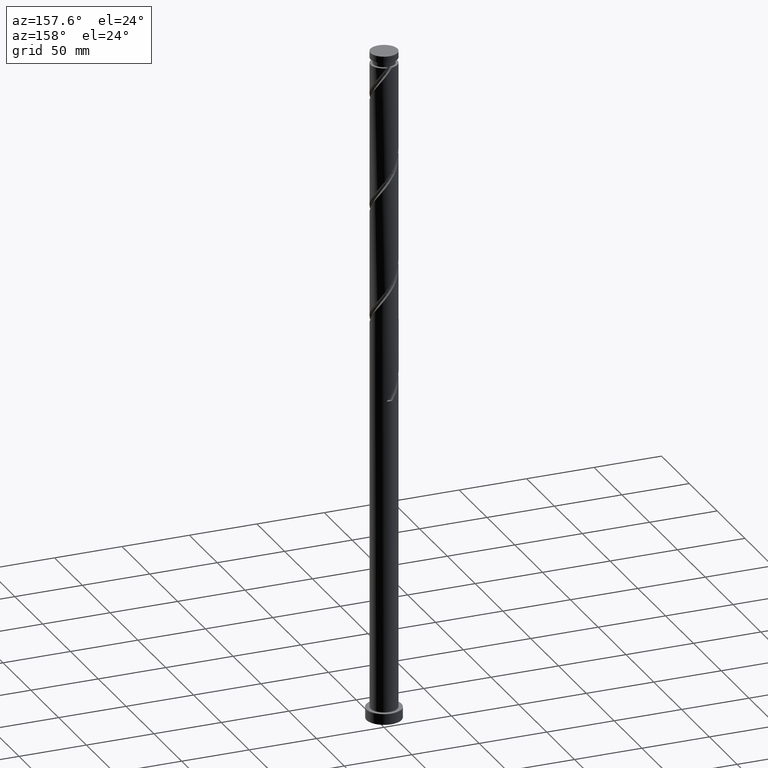
[diagram: clean part render]
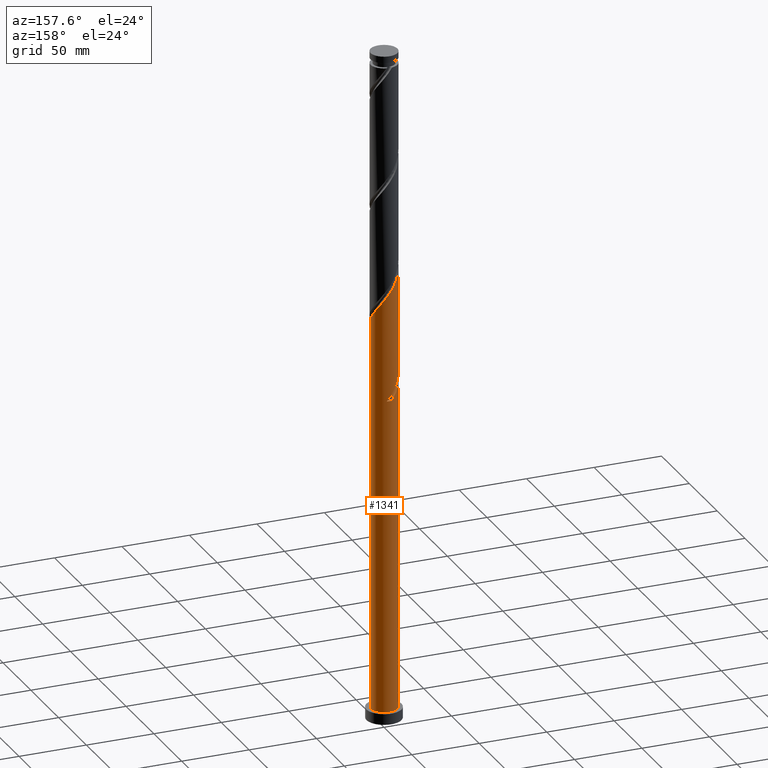
[diagram: same view with one face highlighted and labeled with its STEP entity id]
A machine part, auxiliary view. The second image highlights one B-rep face of the part: STEP entity #1341.
In plain terms, the highlighted cylindrical surface (edge-blend (fillet) strip) has radius 10 mm, axis along (-0, -0, -1).
Its self-contained STEP definition (entity closure, byte-faithful):
#12 = CARTESIAN_POINT ( 'NONE',  ( -9.815549833794840140, 1.911800580680543371, 256.8098413428221534 ) ) ;
#15 = CARTESIAN_POINT ( 'NONE',  ( 9.999920586965943770, 0.03985290924256063017, 301.0806746761556383 ) ) ;
#23 = CARTESIAN_POINT ( 'NONE',  ( 0.000000000000000000, 0.000000000000000000, 500.0000000000000000 ) ) ;
#24 = LINE ( 'NONE', #693, #1190 ) ;
#26 = CARTESIAN_POINT ( 'NONE',  ( -0.03985290924256019995, 9.999920586965943770, 321.9140080094888958 ) ) ;
#51 = CARTESIAN_POINT ( 'NONE',  ( 9.604004581993264011, 2.955190627113456703, 304.9869246761555814 ) ) ;
#61 = CARTESIAN_POINT ( 'NONE',  ( 8.292489003426409155, 5.588794693675231073, 308.8931746761555246 ) ) ;
#95 = CARTESIAN_POINT ( 'NONE',  ( -10.00000000000001421, 1.093322644084541298E-14, 342.6946443648252512 ) ) ;
#100 = CARTESIAN_POINT ( 'NONE',  ( -8.336771183575214295, 5.522521727681143133, 334.9348413428220965 ) ) ;
#119 = EDGE_CURVE ( 'NONE', #935, #1452, #866, .T. ) ;
#167 = CARTESIAN_POINT ( 'NONE',  ( -9.253973005134763952, 3.789984646438214089, 254.2056746761555814 ) ) ;
#183 = CARTESIAN_POINT ( 'NONE',  ( 3.789984646438214089, 9.253973005134763952, 316.7056746761555814 ) ) ;
#190 = DIRECTION ( 'NONE',  ( -1.000000000000000000, 0.000000000000000000, 0.000000000000000000 ) ) ;
#195 = CARTESIAN_POINT ( 'NONE',  ( -10.00000000000000178, 0.000000000000000000, 500.0000000000000000 ) ) ;
#211 = CARTESIAN_POINT ( 'NONE',  ( -7.792850268545467252, 6.343622021019032609, 250.2994246761555814 ) ) ;
#242 = CARTESIAN_POINT ( 'NONE',  ( -9.815549833794840140, 1.911800580680543371, 340.1431746761554678 ) ) ;
#264 = CARTESIAN_POINT ( 'NONE',  ( -9.999999999999996447, -7.861634696127906080E-15, 264.6750383208190556 ) ) ;
#305 = DIRECTION ( 'NONE',  ( -1.000000000000000000, 0.000000000000000000, 0.000000000000000000 ) ) ;
#323 = ORIENTED_EDGE ( 'NONE', *, *, #488, .F. ) ;
#330 = CARTESIAN_POINT ( 'NONE',  ( 10.00000000000000178, 1.224646799147353454E-15, 8.000000000000000000 ) ) ;
#334 = CARTESIAN_POINT ( 'NONE',  ( -10.00000000000000178, 0.000000000000000000, 8.000000000000000000 ) ) ;
#360 = CARTESIAN_POINT ( 'NONE',  ( -2.955190627113461588, 9.604004581993260459, 325.8202580094888958 ) ) ;
#366 = CARTESIAN_POINT ( 'NONE',  ( -5.588794693675229297, 8.292489003426412708, 246.3931746761555246 ) ) ;
#447 = CARTESIAN_POINT ( 'NONE',  ( -5.522521727681131587, 8.336771183575200084, 251.6015080094888390 ) ) ;
#459 = ORIENTED_EDGE ( 'NONE', *, *, #1081, .T. ) ;
#469 = CARTESIAN_POINT ( 'NONE',  ( -9.604004581993240919, 2.955190627113458923, 260.7160913428221534 ) ) ;
#487 = CARTESIAN_POINT ( 'NONE',  ( -10.00000000000001421, 0.9647981492898406453, 258.0853309260759829 ) ) ;
#488 = EDGE_CURVE ( 'NONE', #1774, #1878, #24, .T. ) ;
#492 = CARTESIAN_POINT ( 'NONE',  ( 8.842937235881560554, 4.772055814403907803, 307.5910913428222671 ) ) ;
#514 = CARTESIAN_POINT ( 'NONE',  ( 7.742040770971267527, 6.405533572946549903, 310.1952580094888390 ) ) ;
#519 = ORIENTED_EDGE ( 'NONE', *, *, #557, .F. ) ;
#522 = DIRECTION ( 'NONE',  ( -0.000000000000000000, -0.000000000000000000, -1.000000000000000000 ) ) ;
#532 = CYLINDRICAL_SURFACE ( 'NONE', #1867, 10.00000000000000178 ) ;
#547 = CARTESIAN_POINT ( 'NONE',  ( -8.880692098604958673, 4.701421434343251882, 336.2369246761556951 ) ) ;
#557 = EDGE_CURVE ( 'NONE', #1878, #1426, #665, .T. ) ;
#558 = CARTESIAN_POINT ( 'NONE',  ( -10.00000000000001421, 1.093322644084541298E-14, 342.6946443648252512 ) ) ;
#601 = CARTESIAN_POINT ( 'NONE',  ( -9.999999999999996447, 0.01992653374260485236, 264.6486847663018125 ) ) ;
#609 = ORIENTED_EDGE ( 'NONE', *, *, #831, .F. ) ;
#660 = CARTESIAN_POINT ( 'NONE',  ( 9.800000000000013145, 1.989974874213247702, 303.6848413428222102 ) ) ;
#665 =( BOUNDED_CURVE ( )  B_SPLINE_CURVE ( 2, ( #1262, #601, #945, #1285, #1246, #469, #803, #1455, #1085, #1733, #774, #2072, #447, #696, #835, #1640, #1141, #1804, #1677, #993, #982 ),
 .UNSPECIFIED., .F., .T. ) 
 B_SPLINE_CURVE_WITH_KNOTS ( ( 3, 2, 2, 2, 2, 2, 2, 2, 2, 2, 3 ),
 ( 0.9295286902180871502, 0.9296875000000000000, 0.9375000000000000000, 0.9453125000000000000, 0.9531250000000000000, 0.9609375000000000000, 0.9687500000000000000, 0.9765625000000000000, 0.9843750000000000000, 0.9921875000000000000, 1.000000000000000000 ),
 .UNSPECIFIED. ) 
 CURVE ( )  GEOMETRIC_REPRESENTATION_ITEM ( )  RATIONAL_B_SPLINE_CURVE ( ( 0.9089165573359302419, 0.9090019243628350010, 0.9090909090909268242, 0.9047133878838330423, 0.9090909090909268242, 0.9047133878838330423, 0.9090909090909268242, 0.9047133878838330423, 0.9090909090909268242, 0.9047133878838330423, 0.9090909090909268242, 0.9047133878838330423, 0.9090909090909268242, 0.9047133878838330423, 0.9090909090909268242, 0.9047133878838330423, 0.9090909090909268242, 0.9047133878838330423, 0.9090909090909268242, 0.9047133878838330423, 0.9090909090909268242 ) ) 
 REPRESENTATION_ITEM ( '' )  );
#693 = CARTESIAN_POINT ( 'NONE',  ( -10.00000000000000178, 0.000000000000000000, 500.0000000000000000 ) ) ;
#696 = CARTESIAN_POINT ( 'NONE',  ( -4.701421434343242112, 8.880692098604946239, 250.2994246761555246 ) ) ;
#704 = CARTESIAN_POINT ( 'NONE',  ( -7.099191920746007689, 7.042831395995149180, 248.9973413428221818 ) ) ;
#708 = CARTESIAN_POINT ( 'NONE',  ( 6.343622021019031720, 7.792850268545469028, 312.7994246761555246 ) ) ;
#714 = CARTESIAN_POINT ( 'NONE',  ( -5.588794693675229297, 8.292489003426412708, 329.7265080094888958 ) ) ;
#774 = CARTESIAN_POINT ( 'NONE',  ( -7.042831395995134969, 7.099191920745997919, 254.2056746761555246 ) ) ;
#803 = CARTESIAN_POINT ( 'NONE',  ( -9.223470908937390078, 3.863623220758681587, 259.4140080094888390 ) ) ;
#807 = ORIENTED_EDGE ( 'NONE', *, *, #1429, .F. ) ;
#812 = CARTESIAN_POINT ( 'NONE',  ( -9.627253911664572783, 2.878547858533178072, 255.5077580094889527 ) ) ;
#817 = CIRCLE ( 'NONE', #2041, 10.00000000000000178 ) ;
#831 = EDGE_CURVE ( 'NONE', #1481, #1774, #1899, .T. ) ;
#835 = CARTESIAN_POINT ( 'NONE',  ( -3.789984646438206539, 9.253973005134753294, 248.9973413428221534 ) ) ;
#851 = ORIENTED_EDGE ( 'NONE', *, *, #1805, .T. ) ;
#857 = CARTESIAN_POINT ( 'NONE',  ( 10.00000000000001776, 0.01992653374258430976, 301.0543312526759223 ) ) ;
#866 = LINE ( 'NONE', #195, #1044 ) ;
#891 = CARTESIAN_POINT ( 'NONE',  ( -6.405533572946549903, 7.742040770971267527, 331.0285913428221534 ) ) ;
#935 = VERTEX_POINT ( 'NONE', #1030 ) ;
#945 = CARTESIAN_POINT ( 'NONE',  ( -9.999920586965922453, 0.03985290924256724987, 264.6223413428222102 ) ) ;
#957 = VERTEX_POINT ( 'NONE', #1686 ) ;
#967 = CARTESIAN_POINT ( 'NONE',  ( -3.863623220758684251, 9.223470908937407842, 243.7890080094888674 ) ) ;
#976 = DIRECTION ( 'NONE',  ( 0.000000000000000000, -0.000000000000000000, -1.000000000000000000 ) ) ;
#982 = CARTESIAN_POINT ( 'NONE',  ( 1.989974874213250366, 9.800000000000002487, 241.1848413428221534 ) ) ;
#993 = CARTESIAN_POINT ( 'NONE',  ( 1.024759121313038035, 9.995995418006760502, 242.4869246761555246 ) ) ;
#1014 = CIRCLE ( 'NONE', #1598, 10.00000000000000178 ) ;
#1030 = CARTESIAN_POINT ( 'NONE',  ( -10.00000000000001421, 1.093322644084541298E-14, 259.3613110314919368 ) ) ;
#1044 = VECTOR ( 'NONE', #1653, 1000.000000000000000 ) ;
#1058 = CARTESIAN_POINT ( 'NONE',  ( -9.253973005134763952, 3.789984646438214089, 337.5390080094888958 ) ) ;
#1081 = EDGE_CURVE ( 'NONE', #1481, #2065, #1122, .T. ) ;
#1085 = CARTESIAN_POINT ( 'NONE',  ( -8.292489003426396721, 5.588794693675221303, 256.8098413428222102 ) ) ;
#1111 = ORIENTED_EDGE ( 'NONE', *, *, #2063, .T. ) ;
#1122 = LINE ( 'NONE', #1568, #1291 ) ;
#1141 = CARTESIAN_POINT ( 'NONE',  ( -1.911800580680538042, 9.815549833794827705, 246.3931746761555246 ) ) ;
#1146 = CARTESIAN_POINT ( 'NONE',  ( -8.336771183575214295, 5.522521727681143133, 251.6015080094888390 ) ) ;
#1149 = CARTESIAN_POINT ( 'NONE',  ( 1.911800580680548922, 9.815549833794836587, 319.3098413428222102 ) ) ;
#1158 = FACE_OUTER_BOUND ( 'NONE', #1472, .T. ) ;
#1164 = CARTESIAN_POINT ( 'NONE',  ( 2.878547858533179848, 9.627253911664571007, 318.0077580094888958 ) ) ;
#1190 = VECTOR ( 'NONE', #522, 1000.000000000000000 ) ;
#1218 = CARTESIAN_POINT ( 'NONE',  ( -7.792850268545467252, 6.343622021019032609, 333.6327580094888958 ) ) ;
#1246 = CARTESIAN_POINT ( 'NONE',  ( -9.800000000000002487, 1.989974874213248590, 262.0181746761555814 ) ) ;
#1262 = CARTESIAN_POINT ( 'NONE',  ( -9.999999999999996447, -7.861634696127907657E-15, 264.6750383208190556 ) ) ;
#1285 = CARTESIAN_POINT ( 'NONE',  ( -9.995995418006760502, 1.024759121313037813, 263.3202580094888958 ) ) ;
#1291 = VECTOR ( 'NONE', #1942, 1000.000000000000000 ) ;
#1310 = CARTESIAN_POINT ( 'NONE',  ( 1.989974874213250589, 9.800000000000002487, 241.1848413428221534 ) ) ;
#1315 = CARTESIAN_POINT ( 'NONE',  ( 5.522521727681144021, 8.336771183575212518, 314.1015080094888958 ) ) ;
#1338 = CARTESIAN_POINT ( 'NONE',  ( 7.042831395995150956, 7.099191920746005025, 311.4973413428220965 ) ) ;
#1341 = ADVANCED_FACE ( 'NONE', ( #1158 ), #532, .T. ) ;
#1399 = CARTESIAN_POINT ( 'NONE',  ( -3.863623220758684251, 9.223470908937407842, 327.1223413428220965 ) ) ;
#1426 = VERTEX_POINT ( 'NONE', #1310 ) ;
#1429 = EDGE_CURVE ( 'NONE', #957, #935, #1545, .T. ) ;
#1452 = VERTEX_POINT ( 'NONE', #334 ) ;
#1455 = CARTESIAN_POINT ( 'NONE',  ( -8.842937235881546343, 4.772055814403903362, 258.1119246761555814 ) ) ;
#1472 = EDGE_LOOP ( 'NONE', ( #609, #459, #851, #2100, #807, #1111, #519, #323 ) ) ;
#1478 = CARTESIAN_POINT ( 'NONE',  ( 0.9450533028279091141, 10.00384575592510927, 320.6119246761556951 ) ) ;
#1481 = VERTEX_POINT ( 'NONE', #1852 ) ;
#1499 = CARTESIAN_POINT ( 'NONE',  ( 9.995995418006774713, 1.024759121313039811, 302.3827580094888958 ) ) ;
#1545 =( BOUNDED_CURVE ( )  B_SPLINE_CURVE ( 2, ( #1636, #1822, #967, #1965, #366, #1665, #704, #211, #1146, #1624, #167, #812, #12, #487, #1784 ),
 .UNSPECIFIED., .F., .T. ) 
 B_SPLINE_CURVE_WITH_KNOTS ( ( 3, 2, 2, 2, 2, 2, 2, 3 ),
 ( 0.000000000000000000, 0.007812500000000000000, 0.01562500000000000000, 0.02343750000000000000, 0.03125000000000000000, 0.03906250000000000694, 0.04687500000000000000, 0.05452869021808701144 ),
 .UNSPECIFIED. ) 
 CURVE ( )  GEOMETRIC_REPRESENTATION_ITEM ( )  RATIONAL_B_SPLINE_CURVE ( ( 0.9090909090909334855, 0.9047133878838395926, 0.9090909090909334855, 0.9047133878838395926, 0.9090909090909334855, 0.9047133878838395926, 0.9090909090909334855, 0.9047133878838395926, 0.9090909090909334855, 0.9047133878838395926, 0.9090909090909334855, 0.9047133878838395926, 0.9090909090909334855, 0.9048023726119315269, 0.9089165573359366812 ) ) 
 REPRESENTATION_ITEM ( '' )  );
#1546 = CARTESIAN_POINT ( 'NONE',  ( -7.099191920746007689, 7.042831395995149180, 332.3306746761555814 ) ) ;
#1568 = CARTESIAN_POINT ( 'NONE',  ( 10.00000000000000178, 1.224646799147353454E-15, 500.0000000000000000 ) ) ;
#1598 = AXIS2_PLACEMENT_3D ( 'NONE', #1992, #1716, #1726 ) ;
#1624 = CARTESIAN_POINT ( 'NONE',  ( -8.880692098604958673, 4.701421434343251882, 252.9035913428222102 ) ) ;
#1636 = CARTESIAN_POINT ( 'NONE',  ( -1.989974874213246370, 9.800000000000013145, 241.1848413428221534 ) ) ;
#1640 = CARTESIAN_POINT ( 'NONE',  ( -2.878547858533169634, 9.627253911664558572, 247.6952580094888674 ) ) ;
#1653 = DIRECTION ( 'NONE',  ( -0.000000000000000000, -0.000000000000000000, -1.000000000000000000 ) ) ;
#1665 = CARTESIAN_POINT ( 'NONE',  ( -6.405533572946549903, 7.742040770971267527, 247.6952580094888674 ) ) ;
#1677 = CARTESIAN_POINT ( 'NONE',  ( 0.03985290924256662537, 9.999920586965922453, 243.7890080094888674 ) ) ;
#1686 = CARTESIAN_POINT ( 'NONE',  ( -1.989974874213246370, 9.800000000000013145, 241.1848413428221534 ) ) ;
#1716 = DIRECTION ( 'NONE',  ( 0.000000000000000000, 0.000000000000000000, 1.000000000000000000 ) ) ;
#1726 = DIRECTION ( 'NONE',  ( 1.000000000000000000, 0.000000000000000000, 0.000000000000000000 ) ) ;
#1733 = CARTESIAN_POINT ( 'NONE',  ( -7.742040770971249763, 6.405533572946541021, 255.5077580094888958 ) ) ;
#1771 = DIRECTION ( 'NONE',  ( -0.000000000000000000, -0.000000000000000000, -1.000000000000000000 ) ) ;
#1774 = VERTEX_POINT ( 'NONE', #95 ) ;
#1780 = CARTESIAN_POINT ( 'NONE',  ( 0.000000000000000000, 0.000000000000000000, 241.1848413428221534 ) ) ;
#1784 = CARTESIAN_POINT ( 'NONE',  ( -10.00000000000001066, 1.093322644084541298E-14, 259.3613110314919368 ) ) ;
#1790 = CARTESIAN_POINT ( 'NONE',  ( 4.701421434343258099, 8.880692098604956897, 315.4035913428223807 ) ) ;
#1804 = CARTESIAN_POINT ( 'NONE',  ( -0.9450533028279046732, 10.00384575592509329, 245.0910913428222102 ) ) ;
#1805 = EDGE_CURVE ( 'NONE', #2065, #1452, #1014, .T. ) ;
#1816 = CARTESIAN_POINT ( 'NONE',  ( -1.989974874213247480, 9.800000000000013145, 324.5181746761554678 ) ) ;
#1822 = CARTESIAN_POINT ( 'NONE',  ( -2.955190627113461588, 9.604004581993260459, 242.4869246761555530 ) ) ;
#1845 = CARTESIAN_POINT ( 'NONE',  ( -9.627253911664572783, 2.878547858533178072, 338.8410913428222671 ) ) ;
#1852 = CARTESIAN_POINT ( 'NONE',  ( 10.00000000000002132, 1.340839260406442326E-14, 301.0279776981586792 ) ) ;
#1867 = AXIS2_PLACEMENT_3D ( 'NONE', #23, #1771, #190 ) ;
#1878 = VERTEX_POINT ( 'NONE', #264 ) ;
#1899 =( BOUNDED_CURVE ( )  B_SPLINE_CURVE ( 2, ( #1982, #857, #15, #1499, #660, #51, #1959, #492, #61, #514, #1338, #708, #1315, #1790, #183, #1164, #1149, #1478, #26, #1970, #1816, #360, #1399, #2048, #714, #891, #1546, #1218, #100, #547, #1058, #1845, #242, #2018, #558 ),
 .UNSPECIFIED., .F., .T. ) 
 B_SPLINE_CURVE_WITH_KNOTS ( ( 3, 2, 2, 2, 2, 2, 2, 2, 2, 2, 2, 2, 2, 2, 2, 2, 2, 3 ),
 ( 0.1795286902180870392, 0.1796875000000000000, 0.1875000000000000000, 0.1953125000000000000, 0.2031250000000000000, 0.2109375000000000000, 0.2187500000000000000, 0.2265625000000000000, 0.2343750000000000000, 0.2421875000000000000, 0.2500000000000000000, 0.2578125000000000000, 0.2656250000000000000, 0.2734375000000000000, 0.2812500000000000000, 0.2890625000000000000, 0.2968750000000000000, 0.3045286902180869282 ),
 .UNSPECIFIED. ) 
 CURVE ( )  GEOMETRIC_REPRESENTATION_ITEM ( )  RATIONAL_B_SPLINE_CURVE ( ( 0.9089165573359367922, 0.9090019243628416623, 0.9090909090909334855, 0.9047133878838395926, 0.9090909090909334855, 0.9047133878838395926, 0.9090909090909334855, 0.9047133878838395926, 0.9090909090909334855, 0.9047133878838395926, 0.9090909090909334855, 0.9047133878838395926, 0.9090909090909334855, 0.9047133878838395926, 0.9090909090909334855, 0.9047133878838395926, 0.9090909090909334855, 0.9047133878838395926, 0.9090909090909334855, 0.9047133878838395926, 0.9090909090909334855, 0.9047133878838395926, 0.9090909090909334855, 0.9047133878838395926, 0.9090909090909334855, 0.9047133878838395926, 0.9090909090909334855, 0.9047133878838395926, 0.9090909090909334855, 0.9047133878838395926, 0.9090909090909334855, 0.9047133878838395926, 0.9090909090909334855, 0.9048023726119315269, 0.9089165573359365702 ) ) 
 REPRESENTATION_ITEM ( '' )  );
#1942 = DIRECTION ( 'NONE',  ( -0.000000000000000000, -0.000000000000000000, -1.000000000000000000 ) ) ;
#1959 = CARTESIAN_POINT ( 'NONE',  ( 9.223470908937407842, 3.863623220758685139, 306.2890080094888390 ) ) ;
#1965 = CARTESIAN_POINT ( 'NONE',  ( -4.772055814403910468, 8.842937235881558777, 245.0910913428222671 ) ) ;
#1970 = CARTESIAN_POINT ( 'NONE',  ( -1.024759121313039367, 9.995995418006774713, 323.2160913428222671 ) ) ;
#1982 = CARTESIAN_POINT ( 'NONE',  ( 10.00000000000002132, 1.340839260406442326E-14, 301.0279776981586792 ) ) ;
#1992 = CARTESIAN_POINT ( 'NONE',  ( 0.000000000000000000, 0.000000000000000000, 8.000000000000000000 ) ) ;
#2018 = CARTESIAN_POINT ( 'NONE',  ( -10.00000000000001421, 0.9647981492898510814, 341.4186642594092973 ) ) ;
#2041 = AXIS2_PLACEMENT_3D ( 'NONE', #1780, #976, #305 ) ;
#2048 = CARTESIAN_POINT ( 'NONE',  ( -4.772055814403910468, 8.842937235881558777, 328.4244246761554678 ) ) ;
#2063 = EDGE_CURVE ( 'NONE', #957, #1426, #817, .T. ) ;
#2065 = VERTEX_POINT ( 'NONE', #330 ) ;
#2072 = CARTESIAN_POINT ( 'NONE',  ( -6.343622021019019286, 7.792850268545455705, 252.9035913428222102 ) ) ;
#2100 = ORIENTED_EDGE ( 'NONE', *, *, #119, .F. ) ;